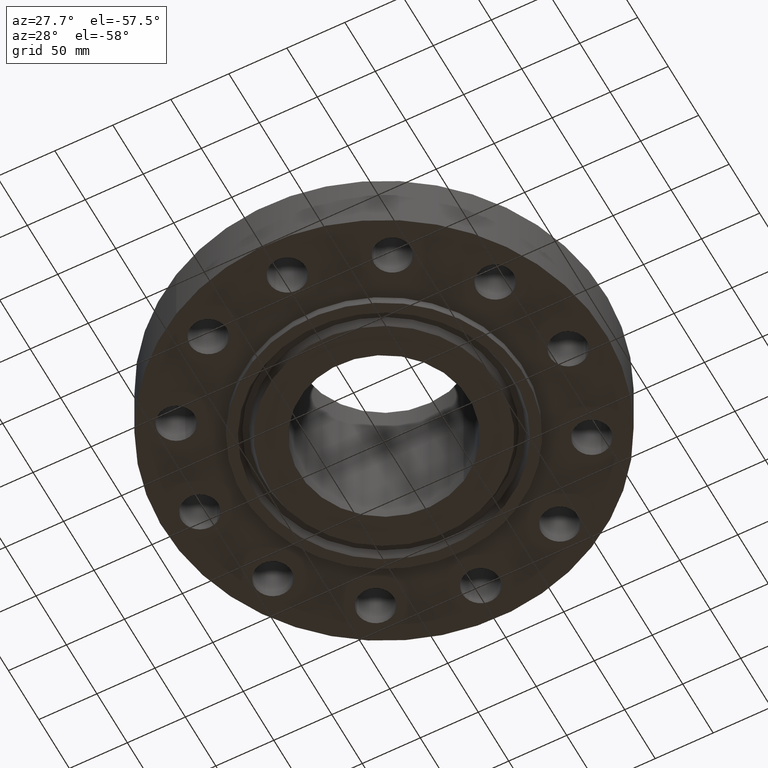
[diagram: clean part render]
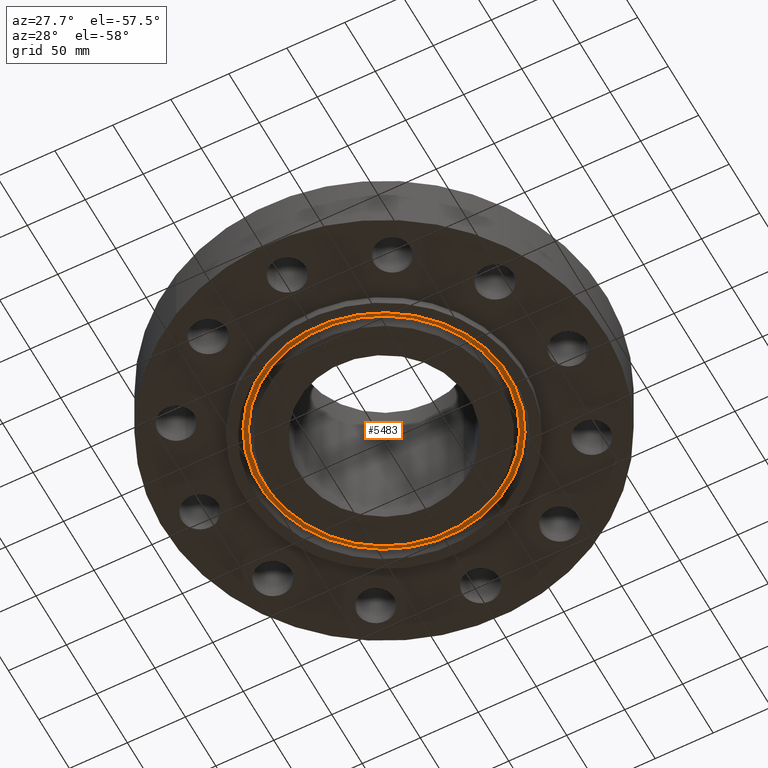
[diagram: same view with one face highlighted and labeled with its STEP entity id]
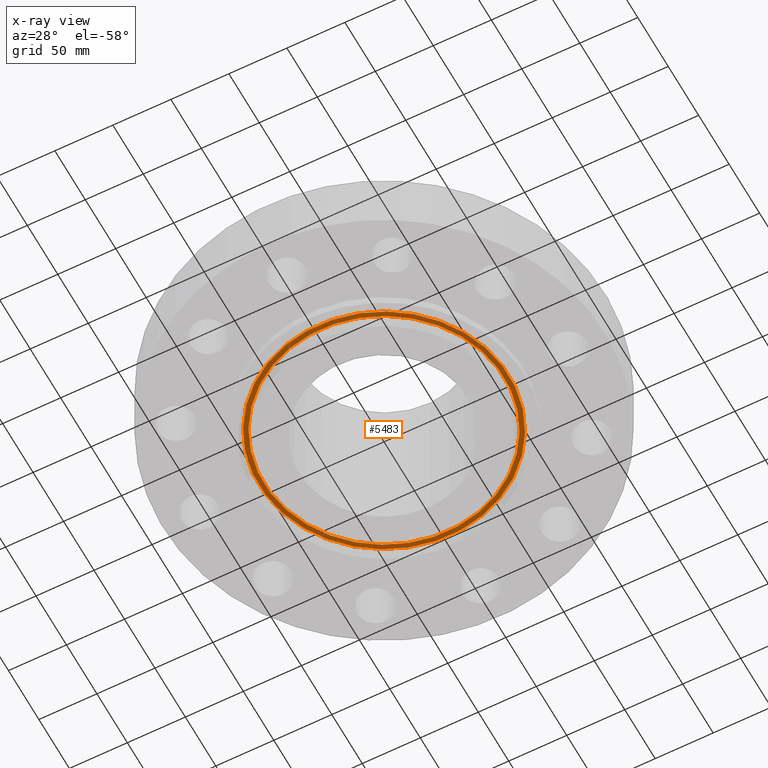
[diagram: x-ray of the same camera — body ghosted, the highlighted face saturated]
A machine part, auxiliary view. The second image highlights one B-rep face of the part: STEP entity #5483.
The next image is the same camera in x-ray: the body ghosted, the highlighted face saturated — about 0% of this face is hidden behind the body in this view.
In plain terms, the highlighted planar face has unit normal (0, 0, -1).
Its self-contained STEP definition (entity closure, byte-faithful):
#139=AXIS2_PLACEMENT_3D('Plane Axis2P3D',#136,#137,#138) ;
#2443=AXIS2_PLACEMENT_3D('Circle Axis2P3D',#2441,#2442,$) ;
#2474=AXIS2_PLACEMENT_3D('Circle Axis2P3D',#2472,#2473,$) ;
#5467=AXIS2_PLACEMENT_3D('Circle Axis2P3D',#5465,#5466,$) ;
#5476=AXIS2_PLACEMENT_3D('Circle Axis2P3D',#5474,#5475,$) ;
#136=CARTESIAN_POINT('Axis2P3D Location',(0.,4.75000000002,0.)) ;
#2438=CARTESIAN_POINT('Vertex',(-2.03146245248,3.71856707638,0.)) ;
#2441=CARTESIAN_POINT('Axis2P3D Location',(0.,0.,0.)) ;
#2445=CARTESIAN_POINT('Vertex',(2.03146245248,-3.71856707638,0.)) ;
#2472=CARTESIAN_POINT('Axis2P3D Location',(0.,0.,0.)) ;
#5465=CARTESIAN_POINT('Axis2P3D Location',(-2.79741234551E-016,5.33242741302E-012,0.)) ;
#5469=CARTESIAN_POINT('Vertex',(1.95376233718,-3.57633796938,0.)) ;
#5471=CARTESIAN_POINT('Vertex',(-1.95376233718,3.57633796939,0.)) ;
#5474=CARTESIAN_POINT('Axis2P3D Location',(2.79741234551E-016,5.33466534289E-012,0.)) ;
#137=DIRECTION('Axis2P3D Direction',(0.,0.,-0.0393700787402)) ;
#138=DIRECTION('Axis2P3D XDirection',(0.0393700787402,0.,0.)) ;
#2442=DIRECTION('Axis2P3D Direction',(0.,0.,0.0393700787402)) ;
#2473=DIRECTION('Axis2P3D Direction',(0.,0.,0.0393700787402)) ;
#5466=DIRECTION('Axis2P3D Direction',(0.,0.,-0.0393700787402)) ;
#5475=DIRECTION('Axis2P3D Direction',(0.,0.,-0.0393700787402)) ;
#5462=ORIENTED_EDGE('',*,*,#2447,.F.) ;
#5463=ORIENTED_EDGE('',*,*,#2476,.F.) ;
#5480=ORIENTED_EDGE('',*,*,#5473,.T.) ;
#5481=ORIENTED_EDGE('',*,*,#5478,.T.) ;
#5482=FACE_BOUND('',#5479,.T.) ;
#5483=ADVANCED_FACE('PartBody',(#5464,#5482),#140,.T.) ;
#2444=CIRCLE('generated circle',#2443,4.23728460189) ;
#2475=CIRCLE('generated circle',#2474,4.23728460189) ;
#5468=CIRCLE('generated circle',#5467,4.07521539817) ;
#5477=CIRCLE('generated circle',#5476,4.07521539817) ;
#2447=EDGE_CURVE('',#2439,#2446,#2444,.T.) ;
#2476=EDGE_CURVE('',#2446,#2439,#2475,.T.) ;
#5473=EDGE_CURVE('',#5470,#5472,#5468,.F.) ;
#5478=EDGE_CURVE('',#5472,#5470,#5477,.F.) ;
#5461=EDGE_LOOP('',(#5462,#5463)) ;
#5479=EDGE_LOOP('',(#5480,#5481)) ;
#5464=FACE_OUTER_BOUND('',#5461,.T.) ;
#140=PLANE('',#139) ;
#2439=VERTEX_POINT('',#2438) ;
#2446=VERTEX_POINT('',#2445) ;
#5470=VERTEX_POINT('',#5469) ;
#5472=VERTEX_POINT('',#5471) ;